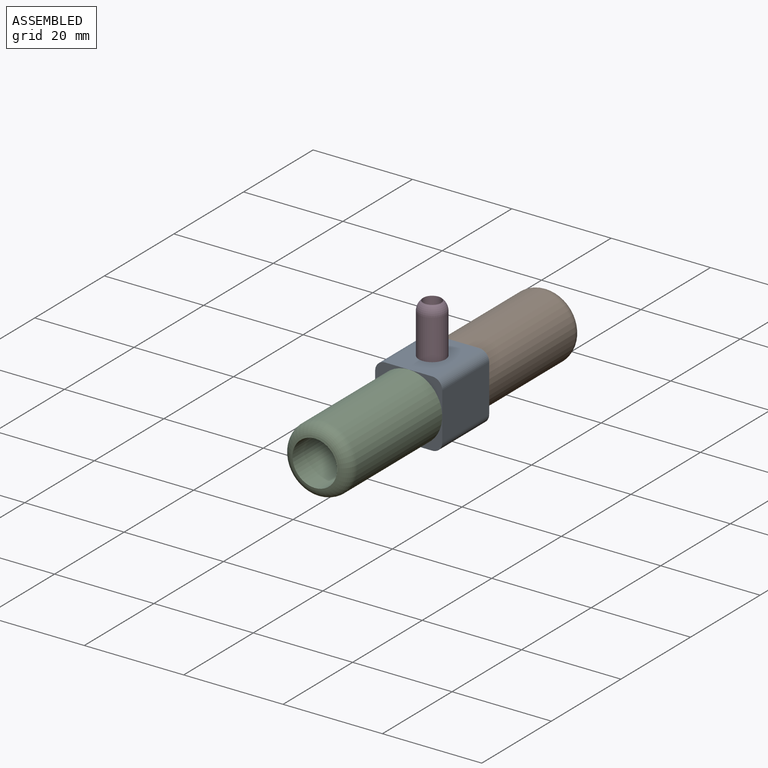
[diagram: assembled view]
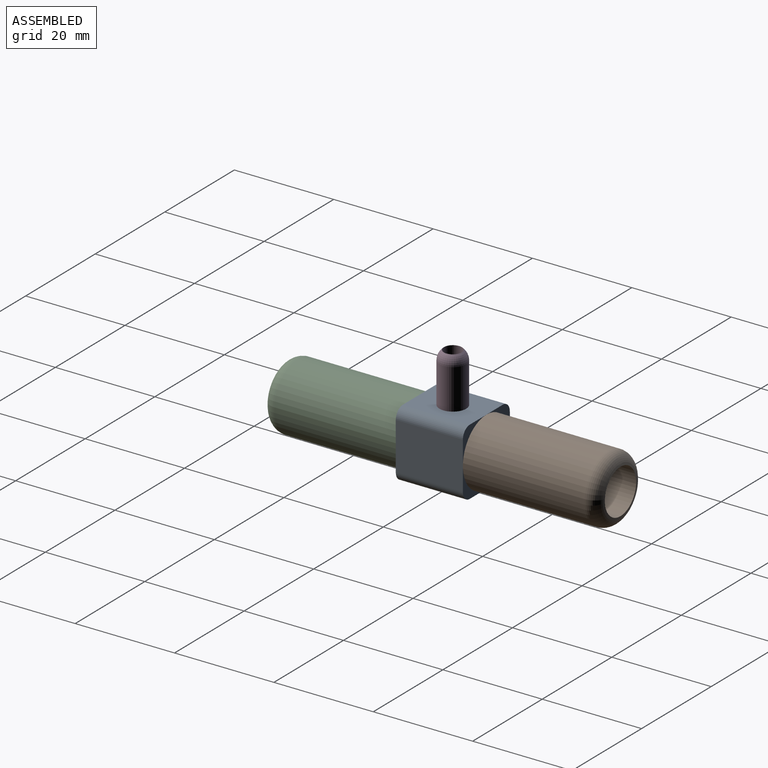
[diagram: assembled view, second angle]
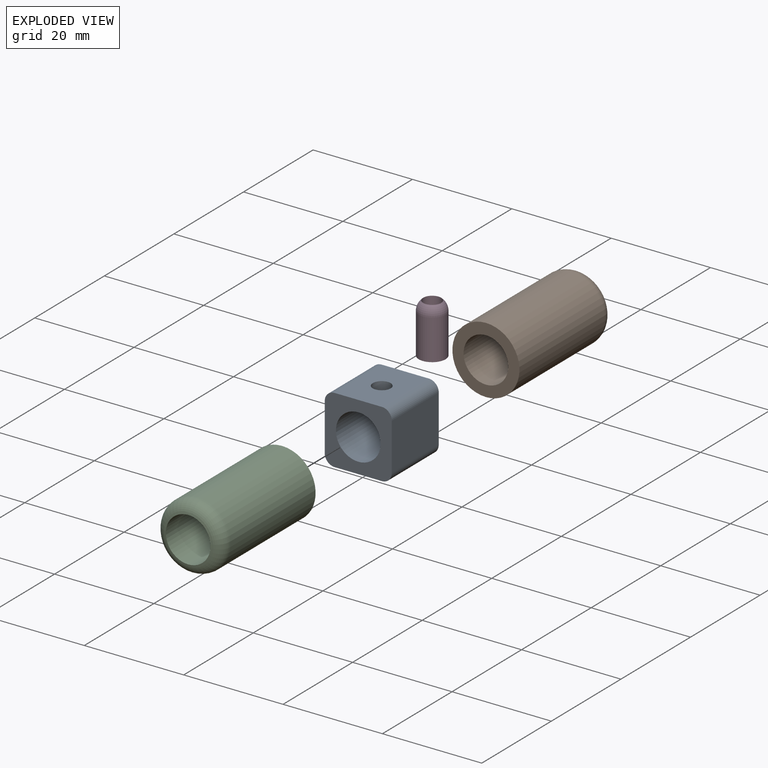
[diagram: exploded view]
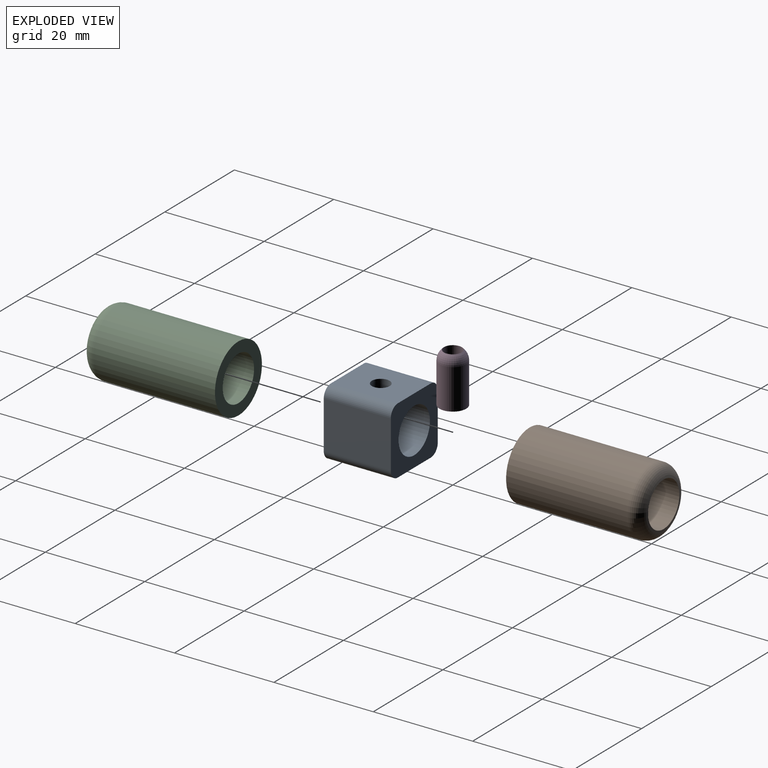
[diagram: exploded view, second angle]
ASSEMBLY  parts=4 mates=3
PART A: 12 faces, bbox 13.5x13.5x13.5 mm
  f0: cylinder r=4.5mm len=13.5mm, axis (1,0,0), area 371.3mm2, adj f4,f5,f7
  f1: plane 13.5x9.5mm, normal (0,0,1), area 118.1mm2, adj f4,f5,f7,f8,f9
  f2: plane 13.5x9.5mm, normal (0,-1,0), area 128.2mm2, adj f4,f5,f8,f10
  f3: plane 13.5x9.5mm, normal (0,0,-1), area 128.2mm2, adj f4,f5,f10,f11
  f4: plane 13.5x13.5mm, normal (1,0,0), area 115.2mm2, adj f0,f1,f2,f3,f6,f8,f9,f10
  f5: plane 13.5x13.5mm, normal (-1,0,0), area 115.2mm2, adj f0,f1,f2,f3,f6,f8,f9,f10
  f6: plane 13.5x9.5mm, normal (0,1,0), area 128.2mm2, adj f4,f5,f9,f11
  f7: cylinder r=1.8mm len=3.6mm, axis (0,0,-1), area 27.5mm2, adj f0,f1
  f8: cylinder r=2mm len=13.5mm, axis (-1,0,0), area 42.4mm2, adj f1,f2,f4,f5
  f9: cylinder r=2mm len=13.5mm, axis (1,0,0), area 42.4mm2, adj f1,f4,f5,f6
  f10: cylinder r=2mm len=13.5mm, axis (1,0,0), area 42.4mm2, adj f2,f3,f4,f5
  f11: cylinder r=2mm len=13.5mm, axis (-1,0,0), area 42.4mm2, adj f3,f4,f5,f6
PART B: 4 faces, bbox 14.6x14.6x27 mm
  f0: cylinder r=4.5mm len=27mm, axis (0,0,-1), area 763.4mm2, adj f2,f3
  f1: cylinder r=6.75mm len=24.51mm, axis (0,0,-1), area 1039.6mm2, adj f2,f3
  f2: plane 13.5x13.5mm, normal (0,0,-1), area 79.5mm2, adj f0,f1
  f3: torus R=4.25mm, axis (0,0,1), area 137.3mm2, adj f0,f1
PART C: same geometry as B
PART D: 4 faces, bbox 5.4x5.4x10 mm
  f0: cylinder r=1.8mm len=10mm, axis (0,0,-1), area 113.1mm2, adj f2,f3
  f1: cylinder r=2.7mm len=8.08mm, axis (0,0,-1), area 137.1mm2, adj f2,f3
  f2: plane 5.4x5.4mm, normal (0,0,-1), area 12.7mm2, adj f0,f1
  f3: torus R=0.2mm, axis (0,0,1), area 32.9mm2, adj f0,f1
PLACE A rot(axis=(0,0,-1),90deg) t=(-6.75,22.95,0)mm
PLACE B rot(axis=(-0.58,-0.58,-0.58),120deg) t=(0,6.75,20.25)mm
PLACE C rot(axis=(0.58,-0.58,0.58),120deg) t=(0,-6.75,20.25)mm
PLACE D rot(axis=(0,0,-1),90deg) t=(0,5.4,13.5)mm
MATE fastened C.f0 <-> A.f0  axis (0,1,0) through (0,-6.75,6.75)mm
MATE fastened A.f7 <-> D.f0  axis (0,0,1) through (0,0,13.5)mm
MATE fastened A.f0 <-> B.f1  axis (0,1,0) through (0,6.75,6.75)mm
